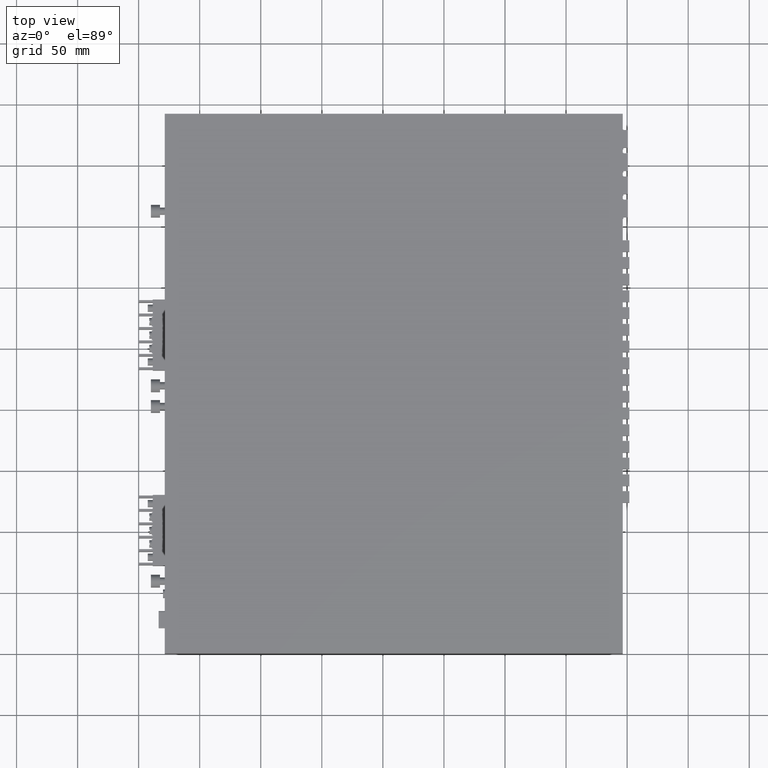
[diagram: clean part render]
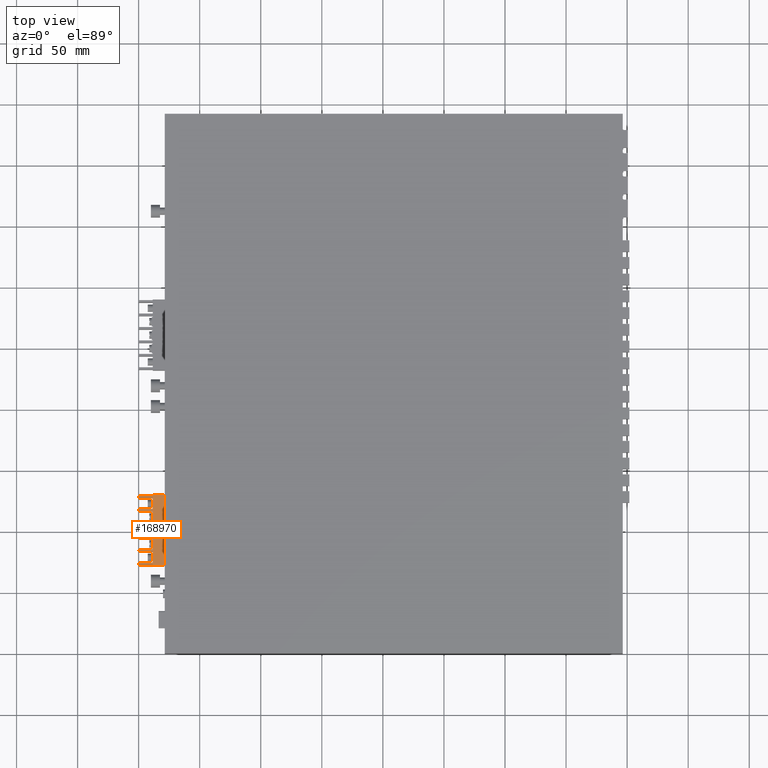
[diagram: same view with one face highlighted and labeled with its STEP entity id]
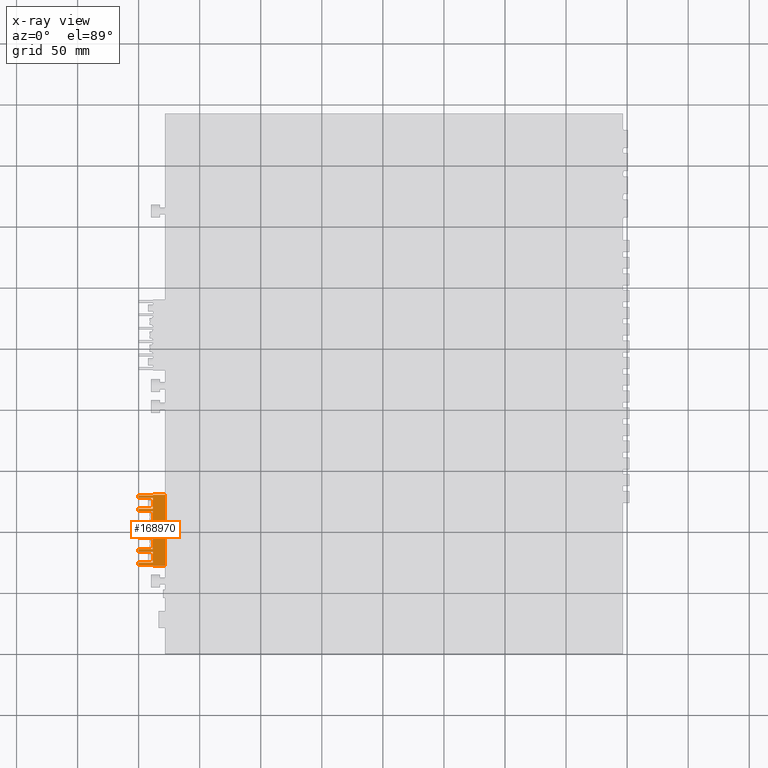
[diagram: x-ray of the same camera — body ghosted, the highlighted face saturated]
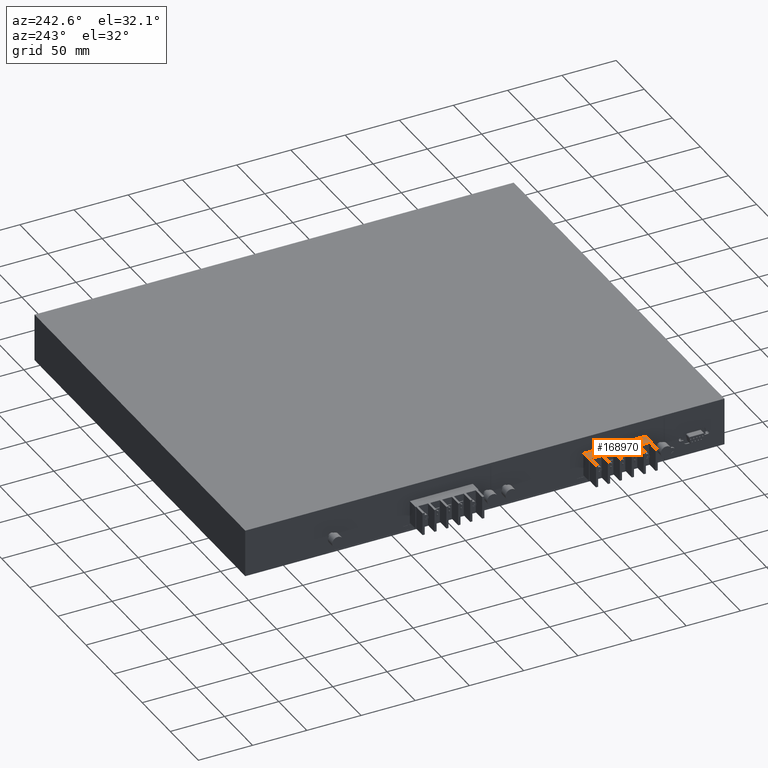
[diagram: same view with one face highlighted and labeled with its STEP entity id]
A machine part, top view. The second image highlights one B-rep face of the part: STEP entity #168970.
The next image is the same camera in x-ray: the body ghosted, the highlighted face saturated — about 0% of this face is hidden behind the body in this view.
A second angle (auxiliary view) of the same face is appended — the face is thin or edge-on in the first view.
In plain terms, the highlighted planar face has unit normal (0, 0, 1).
Its self-contained STEP definition (entity closure, byte-faithful):
#24540=CARTESIAN_POINT('',(-90.5939869574353,-10.9963677763395,
-9.90000000001973));
#24550=VERTEX_POINT('',#24540);
#24600=CARTESIAN_POINT('',(0.,-10.9963677763395,-9.90000000001973));
#24610=DIRECTION('',(-1.,0.,0.));
#24620=VECTOR('',#24610,1.);
#24630=LINE('',#24600,#24620);
#24640=CARTESIAN_POINT('',(-91.0939869574353,-10.9963677763395,
-9.90000000001973));
#24650=VERTEX_POINT('',#24640);
#24660=EDGE_CURVE('',#24550,#24650,#24630,.T.);
#65150=CARTESIAN_POINT('',(-137.093986957435,-10.9963677763395,
-9.90000000001973));
#65160=VERTEX_POINT('',#65150);
#65190=CARTESIAN_POINT('',(0.,-10.9963677763395,-9.90000000001973));
#65200=DIRECTION('',(-1.,0.,0.));
#65210=VECTOR('',#65200,1.);
#65220=LINE('',#65190,#65210);
#65230=CARTESIAN_POINT('',(-146.093986957435,-10.9963677763395,
-9.90000000001973));
#65240=VERTEX_POINT('',#65230);
#65250=EDGE_CURVE('',#65160,#65240,#65220,.T.);
#65830=CARTESIAN_POINT('',(-135.093986957435,-10.9963677763395,0.));
#65840=DIRECTION('',(0.,0.,-1.));
#65850=VECTOR('',#65840,1.);
#65860=LINE('',#65830,#65850);
#65870=CARTESIAN_POINT('',(-135.093986957435,-10.9963677763395,
-9.90000000001973));
#65880=VERTEX_POINT('',#65870);
#65890=CARTESIAN_POINT('',(-135.093986957435,-10.9963677763395,
-21.4000000000197));
#65900=VERTEX_POINT('',#65890);
#65910=EDGE_CURVE('',#65880,#65900,#65860,.T.);
#66240=CARTESIAN_POINT('',(0.,-10.9963677763395,-21.4000000000197));
#66250=DIRECTION('',(1.,0.,0.));
#66260=VECTOR('',#66250,1.);
#66270=LINE('',#66240,#66260);
#66280=CARTESIAN_POINT('',(-137.093986957435,-10.9963677763395,
-21.4000000000197));
#66290=VERTEX_POINT('',#66280);
#66300=EDGE_CURVE('',#66290,#65900,#66270,.T.);
#67250=CARTESIAN_POINT('',(-148.593986957435,-10.9963677763395,
-9.90000000001973));
#67260=VERTEX_POINT('',#67250);
#67310=CARTESIAN_POINT('',(-148.593986957435,-10.9963677763395,0.));
#67320=DIRECTION('',(0.,0.,1.));
#67330=VECTOR('',#67320,1.);
#67340=LINE('',#67310,#67330);
#67350=CARTESIAN_POINT('',(-148.593986957435,-10.9963677763395,
0.199999999980264));
#67360=VERTEX_POINT('',#67350);
#67370=EDGE_CURVE('',#67260,#67360,#67340,.T.);
#70130=CARTESIAN_POINT('',(-90.5939869574353,-10.9963677763395,0.));
#70140=DIRECTION('',(0.,0.,-1.));
#70150=VECTOR('',#70140,1.);
#70160=LINE('',#70130,#70150);
#70170=CARTESIAN_POINT('',(-90.5939869574353,-10.9963677763395,
0.199999999980264));
#70180=VERTEX_POINT('',#70170);
#70190=EDGE_CURVE('',#70180,#24550,#70160,.T.);
#70680=CARTESIAN_POINT('',(-146.093986957435,-10.9963677763395,0.));
#70690=DIRECTION('',(0.,0.,-1.));
#70700=VECTOR('',#70690,1.);
#70710=LINE('',#70680,#70700);
#70720=CARTESIAN_POINT('',(-146.093986957435,-10.9963677763395,
-21.4000000000197));
#70730=VERTEX_POINT('',#70720);
#70740=EDGE_CURVE('',#65240,#70730,#70710,.T.);
#71000=CARTESIAN_POINT('',(0.,-10.9963677763395,-21.4000000000197));
#71010=DIRECTION('',(1.,0.,0.));
#71020=VECTOR('',#71010,1.);
#71030=LINE('',#71000,#71020);
#71040=CARTESIAN_POINT('',(-148.093986957435,-10.9963677763395,
-21.4000000000197));
#71050=VERTEX_POINT('',#71040);
#71060=EDGE_CURVE('',#71050,#70730,#71030,.T.);
#71300=CARTESIAN_POINT('',(-148.093986957435,-10.9963677763395,0.));
#71310=DIRECTION('',(0.,0.,1.));
#71320=VECTOR('',#71310,1.);
#71330=LINE('',#71300,#71320);
#71340=CARTESIAN_POINT('',(-148.093986957435,-10.9963677763395,
-9.90000000001973));
#71350=VERTEX_POINT('',#71340);
#71360=EDGE_CURVE('',#71050,#71350,#71330,.T.);
#71610=CARTESIAN_POINT('',(-137.093986957435,-10.9963677763395,0.));
#71620=DIRECTION('',(0.,0.,1.));
#71630=VECTOR('',#71620,1.);
#71640=LINE('',#71610,#71630);
#71650=EDGE_CURVE('',#66290,#65160,#71640,.T.);
#71830=CARTESIAN_POINT('',(-104.093986957435,-10.9963677763395,0.));
#71840=DIRECTION('',(0.,0.,1.));
#71850=VECTOR('',#71840,1.);
#71860=LINE('',#71830,#71850);
#71870=CARTESIAN_POINT('',(-104.093986957435,-10.9963677763395,
-21.4000000000197));
#71880=VERTEX_POINT('',#71870);
#71890=CARTESIAN_POINT('',(-104.093986957435,-10.9963677763395,
-9.90000000001973));
#71900=VERTEX_POINT('',#71890);
#71910=EDGE_CURVE('',#71880,#71900,#71860,.T.);
#72230=CARTESIAN_POINT('',(-93.0939869574353,-10.9963677763395,0.));
#72240=DIRECTION('',(0.,0.,1.));
#72250=VECTOR('',#72240,1.);
#72260=LINE('',#72230,#72250);
#72270=CARTESIAN_POINT('',(-93.0939869574353,-10.9963677763395,
-21.4000000000197));
#72280=VERTEX_POINT('',#72270);
#72290=CARTESIAN_POINT('',(-93.0939869574353,-10.9963677763395,
-9.90000000001973));
#72300=VERTEX_POINT('',#72290);
#72310=EDGE_CURVE('',#72280,#72300,#72260,.T.);
#85420=CARTESIAN_POINT('',(-91.0939869574353,-10.9963677763395,
-21.4000000000197));
#85430=VERTEX_POINT('',#85420);
#85480=CARTESIAN_POINT('',(0.,-10.9963677763395,-21.4000000000197));
#85490=DIRECTION('',(1.,0.,0.));
#85500=VECTOR('',#85490,1.);
#85510=LINE('',#85480,#85500);
#85520=EDGE_CURVE('',#72280,#85430,#85510,.T.);
#129130=CARTESIAN_POINT('',(0.,-10.9963677763395,-9.90000000001973));
#129140=DIRECTION('',(-1.,0.,0.));
#129150=VECTOR('',#129140,1.);
#129160=LINE('',#129130,#129150);
#129170=EDGE_CURVE('',#71350,#67260,#129160,.T.);
#141470=CARTESIAN_POINT('',(-102.093986957435,-10.9963677763395,
-21.4000000000197));
#141480=VERTEX_POINT('',#141470);
#141530=CARTESIAN_POINT('',(0.,-10.9963677763395,-21.4000000000197));
#141540=DIRECTION('',(1.,0.,0.));
#141550=VECTOR('',#141540,1.);
#141560=LINE('',#141530,#141550);
#141570=EDGE_CURVE('',#71880,#141480,#141560,.T.);
#141740=CARTESIAN_POINT('',(-102.093986957435,-10.9963677763395,0.));
#141750=DIRECTION('',(0.,0.,-1.));
#141760=VECTOR('',#141750,1.);
#141770=LINE('',#141740,#141760);
#141780=CARTESIAN_POINT('',(-102.093986957435,-10.9963677763395,
-9.90000000001973));
#141790=VERTEX_POINT('',#141780);
#141800=EDGE_CURVE('',#141790,#141480,#141770,.T.);
#142680=CARTESIAN_POINT('',(0.,-10.9963677763395,-9.90000000001973));
#142690=DIRECTION('',(-1.,0.,0.));
#142700=VECTOR('',#142690,1.);
#142710=LINE('',#142680,#142700);
#142720=CARTESIAN_POINT('',(-113.093986957435,-10.9963677763395,
-9.90000000001973));
#142730=VERTEX_POINT('',#142720);
#142740=EDGE_CURVE('',#71900,#142730,#142710,.T.);
#146440=CARTESIAN_POINT('',(-91.0939869574353,-10.9963677763395,0.));
#146450=DIRECTION('',(0.,0.,-1.));
#146460=VECTOR('',#146450,1.);
#146470=LINE('',#146440,#146460);
#146480=EDGE_CURVE('',#24650,#85430,#146470,.T.);
#149090=CARTESIAN_POINT('',(0.,-10.9963677763395,-9.90000000001973));
#149100=DIRECTION('',(-1.,0.,0.));
#149110=VECTOR('',#149100,1.);
#149120=LINE('',#149090,#149110);
#149130=EDGE_CURVE('',#72300,#141790,#149120,.T.);
#152950=CARTESIAN_POINT('',(-115.093986957435,-10.9963677763395,0.));
#152960=DIRECTION('',(0.,0.,1.));
#152970=VECTOR('',#152960,1.);
#152980=LINE('',#152950,#152970);
#152990=CARTESIAN_POINT('',(-115.093986957435,-10.9963677763395,
-21.4000000000197));
#153000=VERTEX_POINT('',#152990);
#153010=CARTESIAN_POINT('',(-115.093986957435,-10.9963677763395,
-9.90000000001973));
#153020=VERTEX_POINT('',#153010);
#153030=EDGE_CURVE('',#153000,#153020,#152980,.T.);
#156130=CARTESIAN_POINT('',(0.,-10.9963677763395,-9.90000000001973));
#156140=DIRECTION('',(-1.,0.,0.));
#156150=VECTOR('',#156140,1.);
#156160=LINE('',#156130,#156150);
#156170=CARTESIAN_POINT('',(-124.093986957435,-10.9963677763395,
-9.90000000001973));
#156180=VERTEX_POINT('',#156170);
#156190=EDGE_CURVE('',#153020,#156180,#156160,.T.);
#159700=CARTESIAN_POINT('',(-124.093986957435,-10.9963677763395,
-21.4000000000197));
#159710=VERTEX_POINT('',#159700);
#159740=CARTESIAN_POINT('',(0.,-10.9963677763395,-21.4000000000197));
#159750=DIRECTION('',(1.,0.,0.));
#159760=VECTOR('',#159750,1.);
#159770=LINE('',#159740,#159760);
#159780=CARTESIAN_POINT('',(-126.093986957435,-10.9963677763395,
-21.4000000000197));
#159790=VERTEX_POINT('',#159780);
#159800=EDGE_CURVE('',#159790,#159710,#159770,.T.);
#159970=CARTESIAN_POINT('',(-124.093986957435,-10.9963677763395,0.));
#159980=DIRECTION('',(0.,0.,-1.));
#159990=VECTOR('',#159980,1.);
#160000=LINE('',#159970,#159990);
#160010=EDGE_CURVE('',#156180,#159710,#160000,.T.);
#160140=CARTESIAN_POINT('',(-126.093986957435,-10.9963677763395,0.));
#160150=DIRECTION('',(0.,0.,1.));
#160160=VECTOR('',#160150,1.);
#160170=LINE('',#160140,#160160);
#160180=CARTESIAN_POINT('',(-126.093986957435,-10.9963677763395,
-9.90000000001973));
#160190=VERTEX_POINT('',#160180);
#160200=EDGE_CURVE('',#159790,#160190,#160170,.T.);
#160390=CARTESIAN_POINT('',(0.,-10.9963677763395,-9.90000000001973));
#160400=DIRECTION('',(-1.,0.,0.));
#160410=VECTOR('',#160400,1.);
#160420=LINE('',#160390,#160410);
#160430=EDGE_CURVE('',#160190,#65880,#160420,.T.);
#164600=CARTESIAN_POINT('',(-113.093986957435,-10.9963677763395,0.));
#164610=DIRECTION('',(0.,0.,-1.));
#164620=VECTOR('',#164610,1.);
#164630=LINE('',#164600,#164620);
#164640=CARTESIAN_POINT('',(-113.093986957435,-10.9963677763395,
-21.4000000000197));
#164650=VERTEX_POINT('',#164640);
#164660=EDGE_CURVE('',#142730,#164650,#164630,.T.);
#166760=CARTESIAN_POINT('',(0.,-10.9963677763395,-21.4000000000197));
#166770=DIRECTION('',(1.,0.,0.));
#166780=VECTOR('',#166770,1.);
#166790=LINE('',#166760,#166780);
#166800=EDGE_CURVE('',#153000,#164650,#166790,.T.);
#168570=CARTESIAN_POINT('',(-150.044053107435,-10.9963677763395,
0.740066149980265));
#168580=DIRECTION('',(-0.,1.,0.));
#168590=DIRECTION('',(1.,0.,0.));
#168600=AXIS2_PLACEMENT_3D('',#168570,#168580,#168590);
#168610=PLANE('',#168600);
#168620=ORIENTED_EDGE('',*,*,#70190,.T.);
#168630=CARTESIAN_POINT('',(0.,-10.9963677763395,0.199999999980264));
#168640=DIRECTION('',(-1.,0.,0.));
#168650=VECTOR('',#168640,1.);
#168660=LINE('',#168630,#168650);
#168670=EDGE_CURVE('',#70180,#67360,#168660,.T.);
#168680=ORIENTED_EDGE('',*,*,#168670,.F.);
#168690=ORIENTED_EDGE('',*,*,#67370,.T.);
#168700=ORIENTED_EDGE('',*,*,#129170,.T.);
#168710=ORIENTED_EDGE('',*,*,#71360,.T.);
#168720=ORIENTED_EDGE('',*,*,#71060,.F.);
#168730=ORIENTED_EDGE('',*,*,#70740,.T.);
#168740=ORIENTED_EDGE('',*,*,#65250,.T.);
#168750=ORIENTED_EDGE('',*,*,#71650,.T.);
#168760=ORIENTED_EDGE('',*,*,#66300,.F.);
#168770=ORIENTED_EDGE('',*,*,#65910,.T.);
#168780=ORIENTED_EDGE('',*,*,#160430,.T.);
#168790=ORIENTED_EDGE('',*,*,#160200,.T.);
#168800=ORIENTED_EDGE('',*,*,#159800,.F.);
#168810=ORIENTED_EDGE('',*,*,#160010,.T.);
#168820=ORIENTED_EDGE('',*,*,#156190,.T.);
#168830=ORIENTED_EDGE('',*,*,#153030,.T.);
#168840=ORIENTED_EDGE('',*,*,#166800,.F.);
#168850=ORIENTED_EDGE('',*,*,#164660,.T.);
#168860=ORIENTED_EDGE('',*,*,#142740,.T.);
#168870=ORIENTED_EDGE('',*,*,#71910,.T.);
#168880=ORIENTED_EDGE('',*,*,#141570,.F.);
#168890=ORIENTED_EDGE('',*,*,#141800,.T.);
#168900=ORIENTED_EDGE('',*,*,#149130,.T.);
#168910=ORIENTED_EDGE('',*,*,#72310,.T.);
#168920=ORIENTED_EDGE('',*,*,#85520,.F.);
#168930=ORIENTED_EDGE('',*,*,#146480,.T.);
#168940=ORIENTED_EDGE('',*,*,#24660,.T.);
#168950=EDGE_LOOP('',(#168940,#168930,#168920,#168910,#168900,#168890,
#168880,#168870,#168860,#168850,#168840,#168830,#168820,#168810,#168800,
#168790,#168780,#168770,#168760,#168750,#168740,#168730,#168720,#168710,
#168700,#168690,#168680,#168620));
#168960=FACE_OUTER_BOUND('',#168950,.T.);
#168970=ADVANCED_FACE('',(#168960),#168610,.T.);